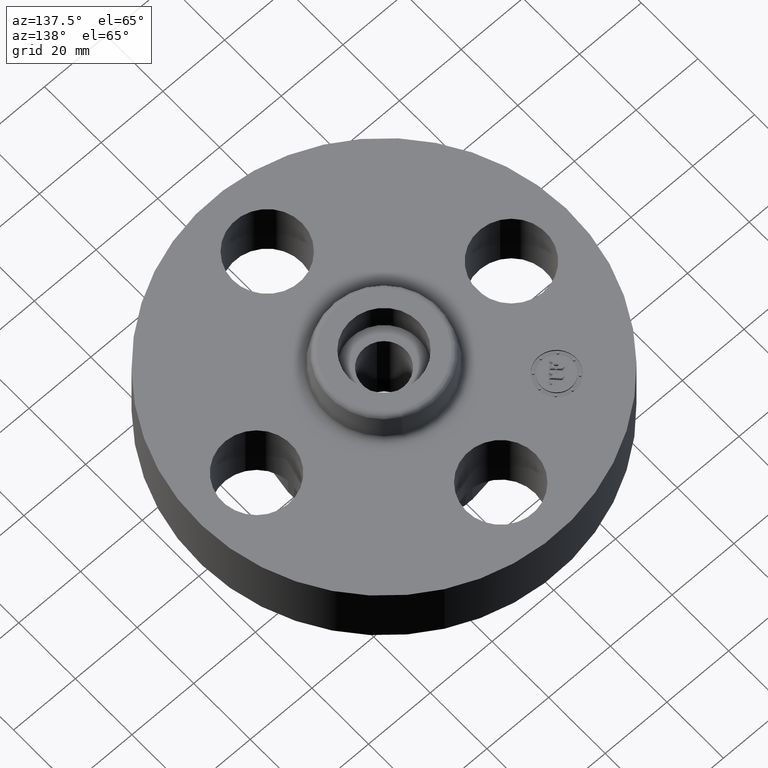
[diagram: clean part render]
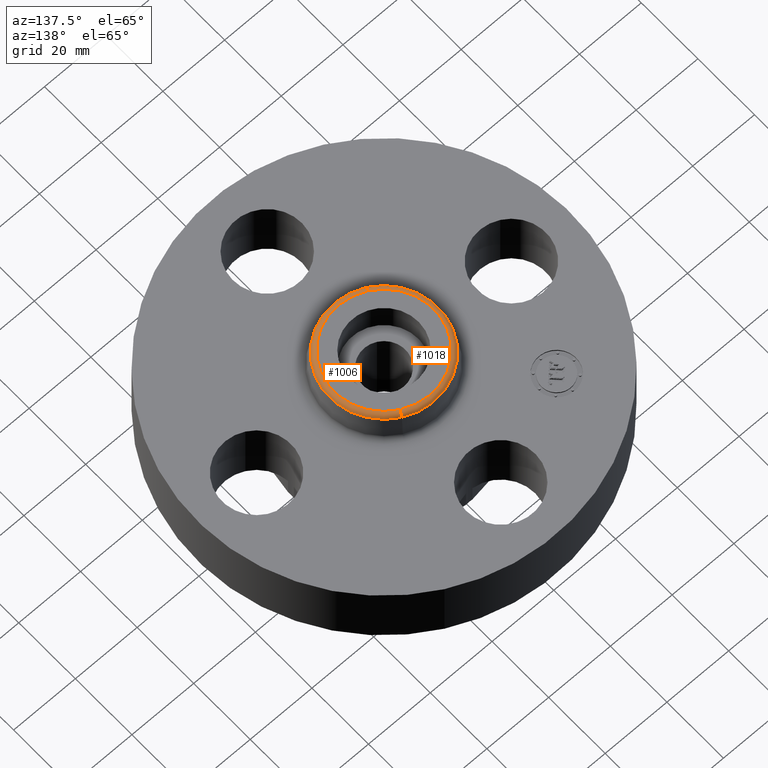
[diagram: same view with one multi-face feature highlighted, each face labeled with its STEP entity id]
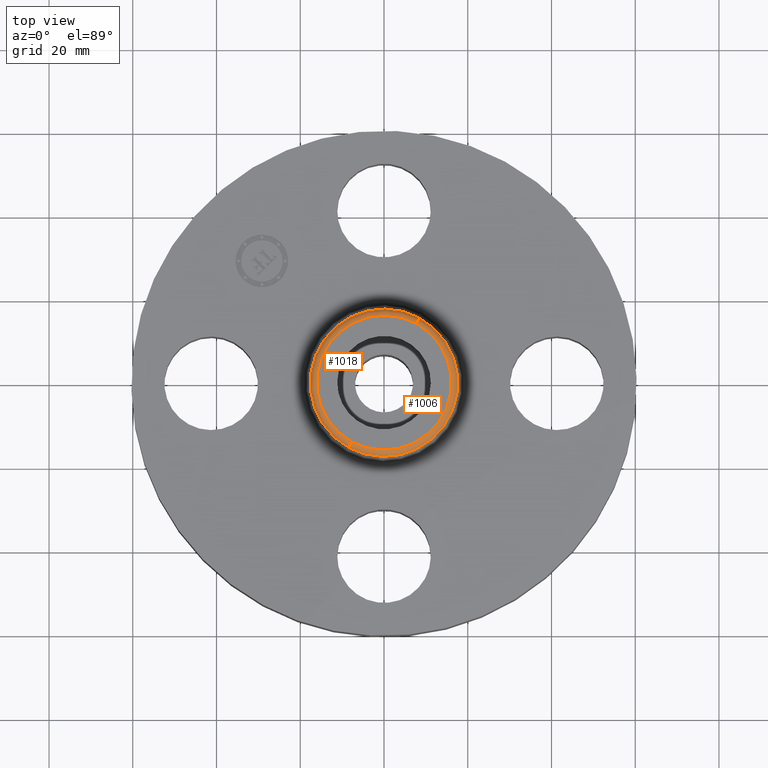
[diagram: same view with one multi-face feature highlighted, each face labeled with its STEP entity id]
A machine part, auxiliary view. The highlighted faces form ONE feature: a constant-radius fillet chain: 2 tangent blend faces with common blend radius 1.524 mm. The faces share edges in the B-rep.
A second angle (top view) of the same feature is appended — it is thin or edge-on in the first view.
Their STEP definitions:
[1] entity #1006 (Torus):
#904=AXIS2_PLACEMENT_3D('Circle Axis2P3D',#902,#903,$) ;
#979=AXIS2_PLACEMENT_3D('Torus Axis2P3D',#976,#977,#978) ;
#983=AXIS2_PLACEMENT_3D('Circle Axis2P3D',#981,#982,$) ;
#990=AXIS2_PLACEMENT_3D('Circle Axis2P3D',#988,#989,$) ;
#997=AXIS2_PLACEMENT_3D('Circle Axis2P3D',#995,#996,$) ;
#899=CARTESIAN_POINT('Vertex',(0.332482332294,0.608604826951,1.20041889066)) ;
#902=CARTESIAN_POINT('Axis2P3D Location',(0.,0.,1.20041889066)) ;
#906=CARTESIAN_POINT('Vertex',(-0.332482332294,-0.608604826951,1.20041889066)) ;
#976=CARTESIAN_POINT('Axis2P3D Location',(0.,0.,1.19)) ;
#981=CARTESIAN_POINT('Axis2P3D Location',(0.304153813049,0.556749820299,1.19)) ;
#985=CARTESIAN_POINT('Vertex',(0.304153813049,0.556749820299,1.25000000001)) ;
#988=CARTESIAN_POINT('Axis2P3D Location',(0.,0.,1.25000000001)) ;
#992=CARTESIAN_POINT('Vertex',(-0.304153813049,-0.556749820299,1.25000000001)) ;
#995=CARTESIAN_POINT('Axis2P3D Location',(-0.304153813049,-0.556749820299,1.19)) ;
#903=DIRECTION('Axis2P3D Direction',(0.,0.,-0.0393700787402)) ;
#977=DIRECTION('Axis2P3D Direction',(0.,0.,-0.0393700787402)) ;
#978=DIRECTION('Axis2P3D XDirection',(-0.0188750212049,-0.0345504945626,0.)) ;
#982=DIRECTION('Axis2P3D Direction',(-0.0345504945626,0.0188750212049,0.)) ;
#989=DIRECTION('Axis2P3D Direction',(0.,0.,-0.0393700787402)) ;
#996=DIRECTION('Axis2P3D Direction',(0.0345504945626,-0.0188750212049,0.)) ;
#1001=ORIENTED_EDGE('',*,*,#908,.F.) ;
#1002=ORIENTED_EDGE('',*,*,#987,.T.) ;
#1003=ORIENTED_EDGE('',*,*,#994,.T.) ;
#1004=ORIENTED_EDGE('',*,*,#999,.F.) ;
#1006=ADVANCED_FACE('PartBody',(#1005),#980,.T.) ;
#905=CIRCLE('generated circle',#904,0.693501504451) ;
#984=CIRCLE('generated circle',#983,0.0600000000002) ;
#991=CIRCLE('generated circle',#990,0.63441303927) ;
#998=CIRCLE('generated circle',#997,0.0600000000002) ;
#980=TOROIDAL_SURFACE('homeo Torus',#979,0.63441303927,0.0600000000002) ;
#908=EDGE_CURVE('',#900,#907,#905,.T.) ;
#987=EDGE_CURVE('',#900,#986,#984,.F.) ;
#994=EDGE_CURVE('',#986,#993,#991,.T.) ;
#999=EDGE_CURVE('',#907,#993,#998,.F.) ;
#1000=EDGE_LOOP('',(#1001,#1002,#1003,#1004)) ;
#1005=FACE_OUTER_BOUND('',#1000,.T.) ;
#900=VERTEX_POINT('',#899) ;
#907=VERTEX_POINT('',#906) ;
#986=VERTEX_POINT('',#985) ;
#993=VERTEX_POINT('',#992) ;
[2] entity #1018 (Torus):
#923=AXIS2_PLACEMENT_3D('Circle Axis2P3D',#921,#922,$) ;
#979=AXIS2_PLACEMENT_3D('Torus Axis2P3D',#976,#977,#978) ;
#983=AXIS2_PLACEMENT_3D('Circle Axis2P3D',#981,#982,$) ;
#997=AXIS2_PLACEMENT_3D('Circle Axis2P3D',#995,#996,$) ;
#1009=AXIS2_PLACEMENT_3D('Circle Axis2P3D',#1007,#1008,$) ;
#899=CARTESIAN_POINT('Vertex',(0.332482332294,0.608604826951,1.20041889066)) ;
#906=CARTESIAN_POINT('Vertex',(-0.332482332294,-0.608604826951,1.20041889066)) ;
#921=CARTESIAN_POINT('Axis2P3D Location',(0.,0.,1.20041889066)) ;
#976=CARTESIAN_POINT('Axis2P3D Location',(0.,0.,1.19)) ;
#981=CARTESIAN_POINT('Axis2P3D Location',(0.304153813049,0.556749820299,1.19)) ;
#985=CARTESIAN_POINT('Vertex',(0.304153813049,0.556749820299,1.25000000001)) ;
#992=CARTESIAN_POINT('Vertex',(-0.304153813049,-0.556749820299,1.25000000001)) ;
#995=CARTESIAN_POINT('Axis2P3D Location',(-0.304153813049,-0.556749820299,1.19)) ;
#1007=CARTESIAN_POINT('Axis2P3D Location',(0.,0.,1.25000000001)) ;
#922=DIRECTION('Axis2P3D Direction',(0.,0.,-0.0393700787402)) ;
#977=DIRECTION('Axis2P3D Direction',(0.,0.,-0.0393700787402)) ;
#978=DIRECTION('Axis2P3D XDirection',(-0.0188750212049,-0.0345504945626,0.)) ;
#982=DIRECTION('Axis2P3D Direction',(-0.0345504945626,0.0188750212049,0.)) ;
#996=DIRECTION('Axis2P3D Direction',(0.0345504945626,-0.0188750212049,0.)) ;
#1008=DIRECTION('Axis2P3D Direction',(0.,0.,-0.0393700787402)) ;
#1013=ORIENTED_EDGE('',*,*,#925,.F.) ;
#1014=ORIENTED_EDGE('',*,*,#999,.T.) ;
#1015=ORIENTED_EDGE('',*,*,#1011,.T.) ;
#1016=ORIENTED_EDGE('',*,*,#987,.F.) ;
#1018=ADVANCED_FACE('PartBody',(#1017),#980,.T.) ;
#924=CIRCLE('generated circle',#923,0.693501504451) ;
#984=CIRCLE('generated circle',#983,0.0600000000002) ;
#998=CIRCLE('generated circle',#997,0.0600000000002) ;
#1010=CIRCLE('generated circle',#1009,0.63441303927) ;
#980=TOROIDAL_SURFACE('homeo Torus',#979,0.63441303927,0.0600000000002) ;
#925=EDGE_CURVE('',#907,#900,#924,.T.) ;
#987=EDGE_CURVE('',#900,#986,#984,.F.) ;
#999=EDGE_CURVE('',#907,#993,#998,.F.) ;
#1011=EDGE_CURVE('',#993,#986,#1010,.T.) ;
#1012=EDGE_LOOP('',(#1013,#1014,#1015,#1016)) ;
#1017=FACE_OUTER_BOUND('',#1012,.T.) ;
#900=VERTEX_POINT('',#899) ;
#907=VERTEX_POINT('',#906) ;
#986=VERTEX_POINT('',#985) ;
#993=VERTEX_POINT('',#992) ;